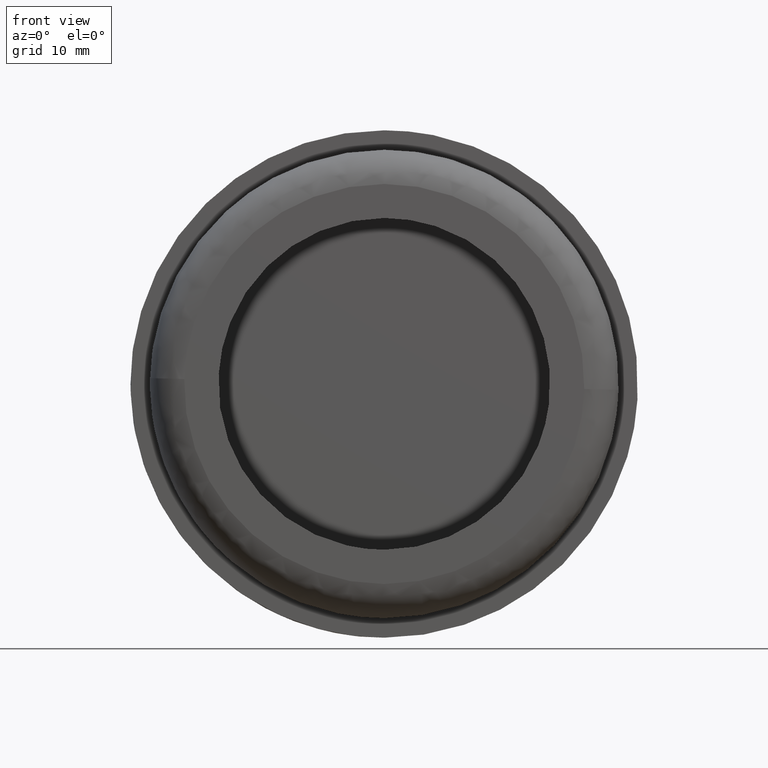
[diagram: clean part render]
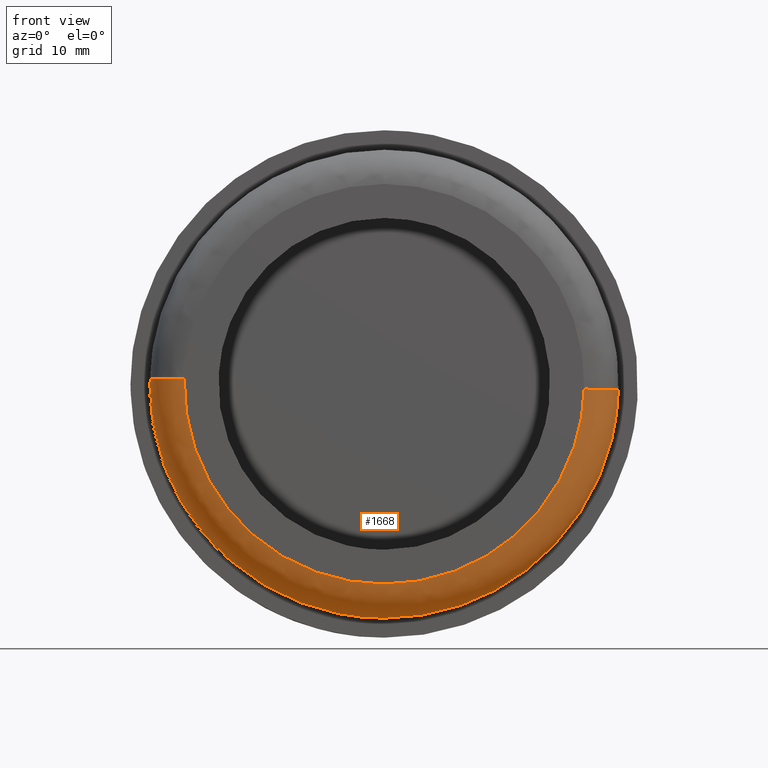
[diagram: same view with one face highlighted and labeled with its STEP entity id]
A machine part, front view. The second image highlights one B-rep face of the part: STEP entity #1668.
In plain terms, the highlighted face is a freeform B-spline surface patch.
Its self-contained STEP definition (entity closure, byte-faithful):
#1163=CARTESIAN_POINT('',(23.992420542798961,3.499999999829014,-0.603122290649290));
#1164=VERTEX_POINT('',#1163);
#1180=CARTESIAN_POINT('',(0.0,3.499999999999800,-24.0));
#1181=VERTEX_POINT('',#1180);
#1182=CARTESIAN_POINT('',(0.0,3.499999999999800,-24.0));
#1183=CARTESIAN_POINT('',(23.404269028317632,3.499999999999800,-24.000000000000011));
#1184=CARTESIAN_POINT('',(23.992420542798964,3.499999999829014,-0.603122290649290));
#1192=(BOUNDED_CURVE()B_SPLINE_CURVE(2,(#1182,#1183,#1184),.UNSPECIFIED.,.F.,.U.)B_SPLINE_CURVE_WITH_KNOTS((3,3),(0.0,0.245579891769673),.UNSPECIFIED.)CURVE()GEOMETRIC_REPRESENTATION_ITEM()RATIONAL_B_SPLINE_CURVE((1.0,0.712285260094884,0.989826157681273))REPRESENTATION_ITEM(''));
#1193=EDGE_CURVE('',#1181,#1164,#1192,.T.);
#1195=CARTESIAN_POINT('',(-15.704150984848710,3.499999999999799,-18.148819296171151));
#1196=VERTEX_POINT('',#1195);
#1197=CARTESIAN_POINT('',(-15.704150984848734,3.499999999999800,-18.148819296171169));
#1198=CARTESIAN_POINT('',(-8.942115815581277,3.499999999999801,-23.999999999999996));
#1199=CARTESIAN_POINT('',(0.0,3.499999999999800,-24.0));
#1207=(BOUNDED_CURVE()B_SPLINE_CURVE(2,(#1197,#1198,#1199),.UNSPECIFIED.,.F.,.U.)B_SPLINE_CURVE_WITH_KNOTS((3,3),(0.885882126468703,1.0),.UNSPECIFIED.)CURVE()GEOMETRIC_REPRESENTATION_ITEM()RATIONAL_B_SPLINE_CURVE((0.854663298212747,0.866302594789088,1.0))REPRESENTATION_ITEM(''));
#1208=EDGE_CURVE('',#1196,#1181,#1207,.T.);
#1252=CARTESIAN_POINT('',(-23.992420542798971,3.499999999829014,0.603122290649286));
#1253=VERTEX_POINT('',#1252);
#1254=CARTESIAN_POINT('',(-23.992420542798968,3.499999999829014,0.603122290649286));
#1255=CARTESIAN_POINT('',(-24.0,3.499999999999800,0.301608770970300));
#1256=CARTESIAN_POINT('',(-24.0,3.499999999999800,-2.939055E-016));
#1257=CARTESIAN_POINT('',(-24.0,3.499999999999801,-10.970431360547767));
#1258=CARTESIAN_POINT('',(-15.704150984848734,3.499999999999800,-18.148819296171169));
#1266=(BOUNDED_CURVE()B_SPLINE_CURVE(2,(#1254,#1255,#1256,#1257,#1258),.UNSPECIFIED.,.F.,.U.)B_SPLINE_CURVE_WITH_KNOTS((3,2,3),(0.745579891769674,0.750000000000000,0.885882126468703),.UNSPECIFIED.)CURVE()GEOMETRIC_REPRESENTATION_ITEM()RATIONAL_B_SPLINE_CURVE((0.989826157681273,0.994821521091663,1.0,0.840804186397460,0.854663298212747))REPRESENTATION_ITEM(''));
#1267=EDGE_CURVE('',#1253,#1196,#1266,.T.);
#1580=CARTESIAN_POINT('',(-23.983905309504898,3.744034645905404,0.602908234413442));
#1581=CARTESIAN_POINT('',(-24.586813543918353,3.744034645905404,-23.380997075091443));
#1582=CARTESIAN_POINT('',(-0.602908234413449,3.744034645905404,-23.983905309504898));
#1583=CARTESIAN_POINT('',(23.380997075091443,3.744034645905404,-24.586813543918353));
#1584=CARTESIAN_POINT('',(23.983905309504898,3.744034645905404,-0.602908234413451));
#1585=CARTESIAN_POINT('',(-24.264421946471508,-0.270674885224724,0.609959871256342));
#1586=CARTESIAN_POINT('',(-24.874381817727848,-0.270674885224724,-23.654462075215147));
#1587=CARTESIAN_POINT('',(-0.609959871256349,-0.270674885224724,-24.264421946471508));
#1588=CARTESIAN_POINT('',(23.654462075215147,-0.270674885224724,-24.874381817727848));
#1589=CARTESIAN_POINT('',(24.264421946471508,-0.270674885224724,-0.609959871256351));
#1590=CARTESIAN_POINT('',(-20.250875526843615,0.008426773074972,0.509067203679171));
#1591=CARTESIAN_POINT('',(-20.759942730522809,0.008426773074972,-19.741808323164442));
#1592=CARTESIAN_POINT('',(-0.509067203679176,0.008426773074972,-20.250875526843615));
#1593=CARTESIAN_POINT('',(19.741808323164442,0.008426773074972,-20.759942730522809));
#1594=CARTESIAN_POINT('',(20.250875526843615,0.008426773074972,-0.509067203679178));
#1602=(BOUNDED_SURFACE()B_SPLINE_SURFACE(2,2,((#1580,#1585,#1590),(#1581,#1586,#1591),(#1582,#1587,#1592),(#1583,#1588,#1593),(#1584,#1589,#1594)),.UNSPECIFIED.,.F.,.F.,.U.)B_SPLINE_SURFACE_WITH_KNOTS((3,2,3),(3,3),(0.0,39.750389030324818,79.500778060649637),(0.0,6.378296138175084),.UNSPECIFIED.)GEOMETRIC_REPRESENTATION_ITEM()RATIONAL_B_SPLINE_SURFACE(((0.910892941386805,0.599412934105556,0.915966621324616),(0.644098575789570,0.423848950436964,0.647686209279166),(0.910892941386805,0.599412934105556,0.915966621324616),(0.644098575789570,0.423848950436964,0.647686209279166),(0.910892941386805,0.599412934105556,0.915966621324616)))REPRESENTATION_ITEM('')SURFACE());
#1603=ORIENTED_EDGE('',*,*,#1267,.T.);
#1604=ORIENTED_EDGE('',*,*,#1208,.T.);
#1605=ORIENTED_EDGE('',*,*,#1193,.T.);
#1606=CARTESIAN_POINT('',(20.493525881468749,-2.033738E-013,-0.515166956720143));
#1607=VERTEX_POINT('',#1606);
#1608=CARTESIAN_POINT('',(23.992420542798964,3.499999999829014,-0.603122290649290));
#1609=CARTESIAN_POINT('',(23.992420542457719,2.327887E-009,-0.603122290631514));
#1610=CARTESIAN_POINT('',(20.493525881468752,-2.033738E-013,-0.515166956720143));
#1618=(BOUNDED_CURVE()B_SPLINE_CURVE(2,(#1608,#1609,#1610),.UNSPECIFIED.,.F.,.U.)B_SPLINE_CURVE_WITH_KNOTS((3,3),(-1.723441281884290,-0.263586879616255),.UNSPECIFIED.)CURVE()GEOMETRIC_REPRESENTATION_ITEM()RATIONAL_B_SPLINE_CURVE((0.883897567103251,0.626638727376880,0.888510408815568))REPRESENTATION_ITEM(''));
#1619=EDGE_CURVE('',#1164,#1607,#1618,.T.);
#1620=ORIENTED_EDGE('',*,*,#1619,.T.);
#1621=CARTESIAN_POINT('',(0.0,-2.029488E-013,-20.500000000000000));
#1622=VERTEX_POINT('',#1621);
#1623=CARTESIAN_POINT('',(0.0,-2.029488E-013,-20.500000000000000));
#1624=CARTESIAN_POINT('',(19.991146461503316,-2.029488E-013,-20.500000000000007));
#1625=CARTESIAN_POINT('',(20.493525881468752,-2.033738E-013,-0.515166956720143));
#1633=(BOUNDED_CURVE()B_SPLINE_CURVE(2,(#1623,#1624,#1625),.UNSPECIFIED.,.F.,.U.)B_SPLINE_CURVE_WITH_KNOTS((3,3),(0.0,0.245579891768058),.UNSPECIFIED.)CURVE()GEOMETRIC_REPRESENTATION_ITEM()RATIONAL_B_SPLINE_CURVE((1.0,0.712285260096777,0.989826157677621))REPRESENTATION_ITEM(''));
#1634=EDGE_CURVE('',#1622,#1607,#1633,.T.);
#1635=ORIENTED_EDGE('',*,*,#1634,.F.);
#1636=CARTESIAN_POINT('',(-20.493525881468749,-2.034363E-013,0.515166956720147));
#1637=VERTEX_POINT('',#1636);
#1638=CARTESIAN_POINT('',(-20.493525881468749,-2.034363E-013,0.515166956720147));
#1639=CARTESIAN_POINT('',(-20.500000000000000,-2.029488E-013,0.257624158631806));
#1640=CARTESIAN_POINT('',(-20.500000000000000,-2.029488E-013,-2.939055E-016));
#1641=CARTESIAN_POINT('',(-20.500000000000007,-2.029488E-013,-20.500000000000007));
#1642=CARTESIAN_POINT('',(0.0,-2.029488E-013,-20.500000000000000));
#1650=(BOUNDED_CURVE()B_SPLINE_CURVE(2,(#1638,#1639,#1640,#1641,#1642),.UNSPECIFIED.,.F.,.U.)B_SPLINE_CURVE_WITH_KNOTS((3,2,3),(0.745579891768058,0.750000000000000,1.0),.UNSPECIFIED.)CURVE()GEOMETRIC_REPRESENTATION_ITEM()RATIONAL_B_SPLINE_CURVE((0.989826157677621,0.994821521089770,1.0,0.707106781186548,1.0))REPRESENTATION_ITEM(''));
#1651=EDGE_CURVE('',#1637,#1622,#1650,.T.);
#1652=ORIENTED_EDGE('',*,*,#1651,.F.);
#1653=CARTESIAN_POINT('',(-23.992420542798968,3.499999999829014,0.603122290649286));
#1654=CARTESIAN_POINT('',(-23.992420542457733,2.327890E-009,0.603122290631516));
#1655=CARTESIAN_POINT('',(-20.493525881468752,-2.034363E-013,0.515166956720147));
#1663=(BOUNDED_CURVE()B_SPLINE_CURVE(2,(#1653,#1654,#1655),.UNSPECIFIED.,.F.,.U.)B_SPLINE_CURVE_WITH_KNOTS((3,3),(-1.723441281884290,-0.263586879616256),.UNSPECIFIED.)CURVE()GEOMETRIC_REPRESENTATION_ITEM()RATIONAL_B_SPLINE_CURVE((0.883897567103251,0.626638727376880,0.888510408815567))REPRESENTATION_ITEM(''));
#1664=EDGE_CURVE('',#1253,#1637,#1663,.T.);
#1665=ORIENTED_EDGE('',*,*,#1664,.F.);
#1666=EDGE_LOOP('',(#1603,#1604,#1605,#1620,#1635,#1652,#1665));
#1667=FACE_OUTER_BOUND('',#1666,.T.);
#1668=ADVANCED_FACE('',(#1667),#1602,.T.);